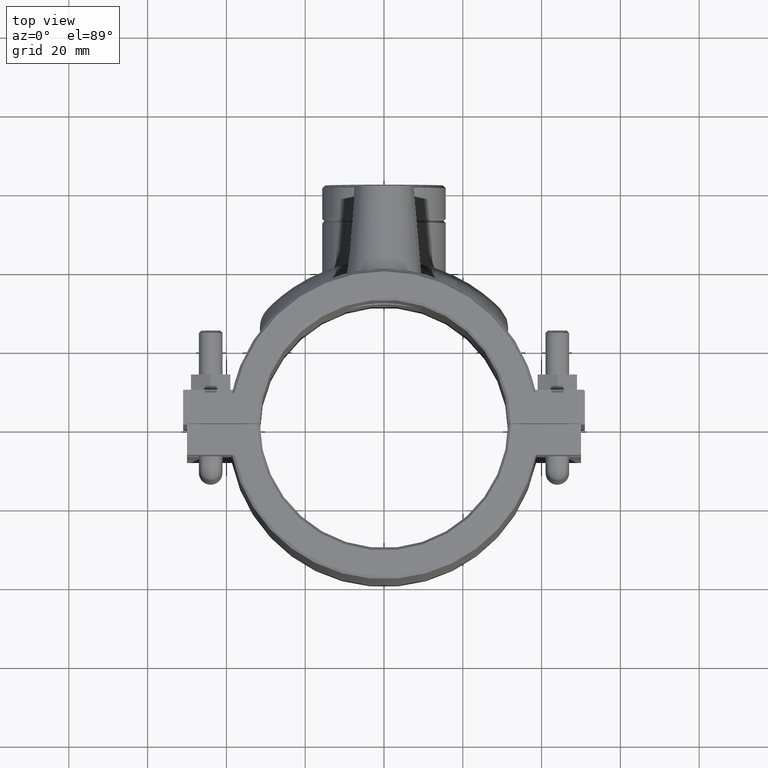
[diagram: clean part render]
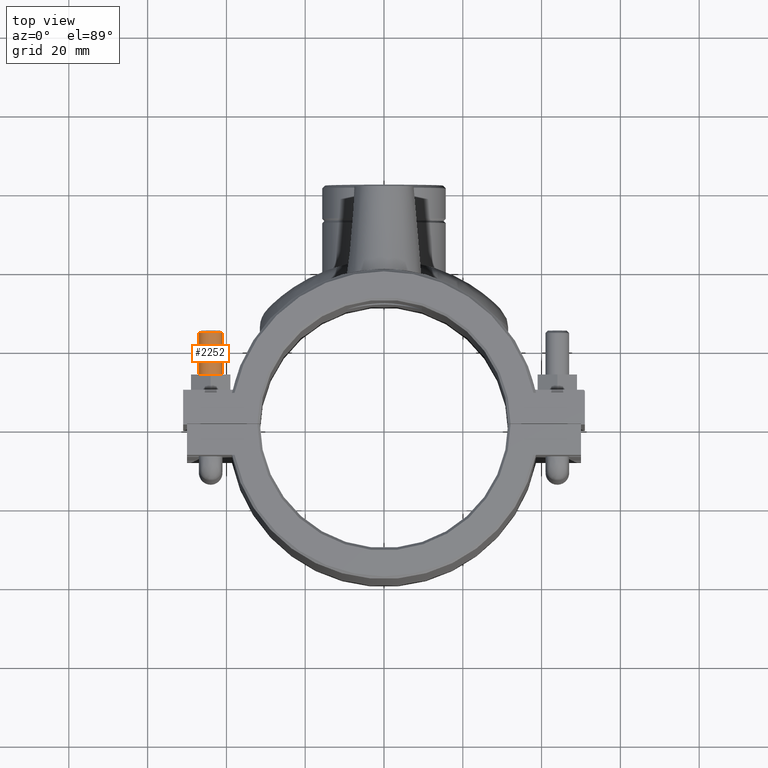
[diagram: same view with one face highlighted and labeled with its STEP entity id]
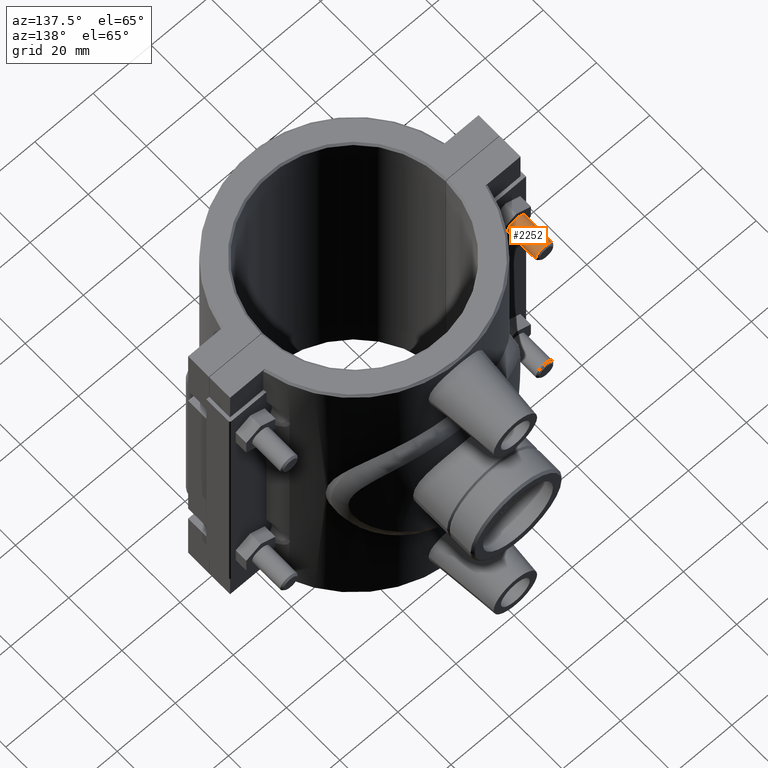
[diagram: same view with one face highlighted and labeled with its STEP entity id]
A machine part, top view. The second image highlights one B-rep face of the part: STEP entity #2252.
A second angle (auxiliary view) of the same face is appended — the face is thin or edge-on in the first view.
In plain terms, the highlighted cylindrical surface (bore or boss wall) has radius 3 mm, axis along (0, 1, 0).
Its self-contained STEP definition (entity closure, byte-faithful):
#68=CYLINDRICAL_SURFACE('',#2418,3.);
#109=FACE_BOUND('',#382,.T.);
#221=FACE_OUTER_BOUND('',#381,.T.);
#381=EDGE_LOOP('',(#1751));
#382=EDGE_LOOP('',(#1752));
#895=CIRCLE('',#2403,3.);
#903=CIRCLE('',#2419,3.);
#1059=VERTEX_POINT('',#3738);
#1076=VERTEX_POINT('',#3860);
#1308=EDGE_CURVE('',#1059,#1059,#895,.T.);
#1331=EDGE_CURVE('',#1076,#1076,#903,.T.);
#1751=ORIENTED_EDGE('',*,*,#1308,.T.);
#1752=ORIENTED_EDGE('',*,*,#1331,.T.);
#2252=ADVANCED_FACE('',(#221,#109),#68,.T.);
#2403=AXIS2_PLACEMENT_3D('',#3739,#2779,#2780);
#2418=AXIS2_PLACEMENT_3D('',#3859,#2818,#2819);
#2419=AXIS2_PLACEMENT_3D('',#3861,#2820,#2821);
#2779=DIRECTION('center_axis',(0.,1.,0.));
#2780=DIRECTION('ref_axis',(1.,0.,0.));
#2818=DIRECTION('center_axis',(0.,1.,6.95368431282979E-17));
#2819=DIRECTION('ref_axis',(1.,0.,0.));
#2820=DIRECTION('center_axis',(0.,-1.,0.));
#2821=DIRECTION('ref_axis',(1.,0.,0.));
#3738=CARTESIAN_POINT('',(-47.,12.875,35.4));
#3739=CARTESIAN_POINT('Origin',(-44.,12.875,35.4));
#3859=CARTESIAN_POINT('Origin',(-44.,24.0569363571555,35.4));
#3860=CARTESIAN_POINT('',(-47.,23.4569363571555,35.4));
#3861=CARTESIAN_POINT('Origin',(-44.,23.4569363571555,35.4));